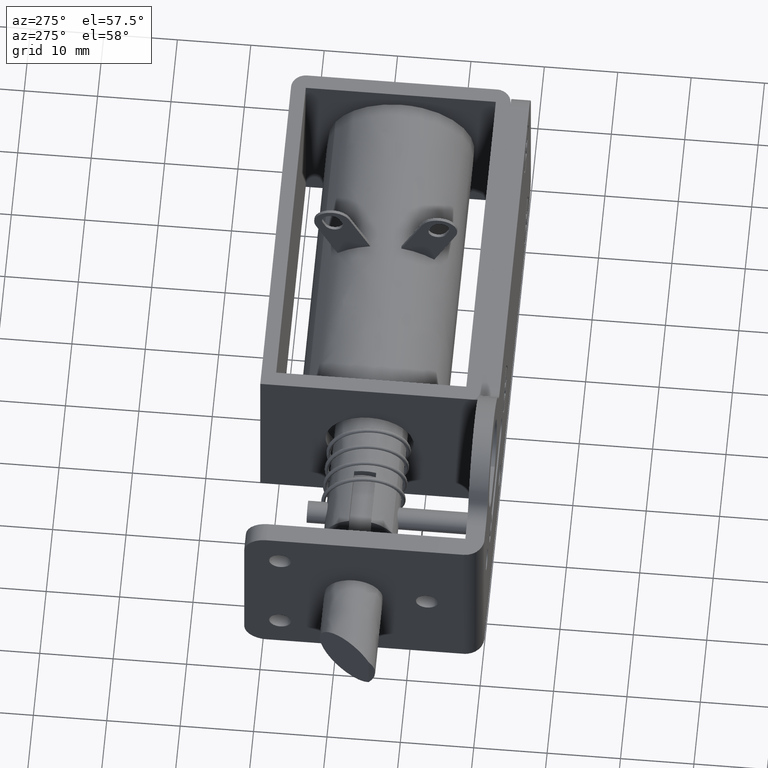
[diagram: clean part render]
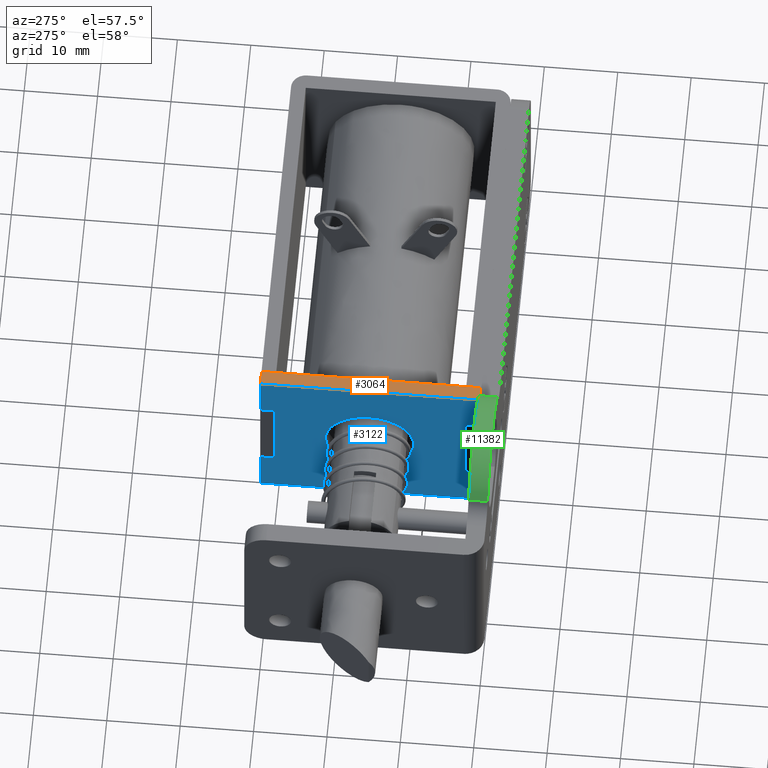
[diagram: same view with three faces highlighted in distinct colors, each labeled with its STEP entity id]
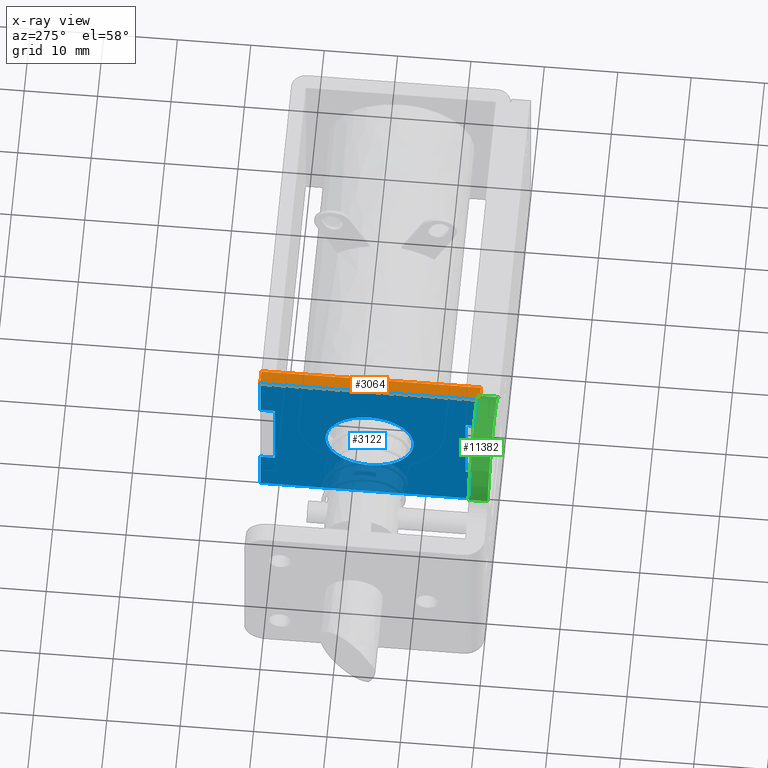
[diagram: x-ray of the same camera — body ghosted, the three highlighted faces saturated]
A machine part, auxiliary view with three faces highlighted in distinct colors.
The next image is the same camera in x-ray (body ghosted, the three faces saturated) — at least one of them is partly hidden behind the body in this view.
Their STEP definitions:

[orange] entity #3064 — the highlighted face is a freeform B-spline surface patch.
#3029=CARTESIAN_POINT('',(8.900100003876588,33.993504942047991,1.500000000000000));
#3030=CARTESIAN_POINT('',(11.099900049767990,33.993504942047991,1.500000000000000));
#3031=CARTESIAN_POINT('',(8.900100003876588,1.106494255971624,1.500000000000000));
#3032=CARTESIAN_POINT('',(11.099900049767990,1.106494255971624,1.500000000000000));
#3033=B_SPLINE_SURFACE_WITH_KNOTS('',1,1,((#3029,#3031),(#3030,#3032)),.UNSPECIFIED.,.F.,.F.,.U.,(2,2),(2,2),(0.0,2.199800045891402),(0.0,32.887010686076373),.UNSPECIFIED.);
#3034=CARTESIAN_POINT('',(11.000000000000201,32.500000000000000,1.499999999999946));
#3035=VERTEX_POINT('',#3034);
#3036=CARTESIAN_POINT('',(11.000000000000201,2.600000000000110,1.499999999999946));
#3037=VERTEX_POINT('',#3036);
#3038=CARTESIAN_POINT('',(11.000000000000201,32.500000000000000,1.499999999999946));
#3039=CARTESIAN_POINT('',(11.000000000000201,2.600000000000110,1.499999999999946));
#3040=QUASI_UNIFORM_CURVE('',1,(#3038,#3039),.UNSPECIFIED.,.F.,.U.);
#3041=EDGE_CURVE('',#3035,#3037,#3040,.T.);
#3042=ORIENTED_EDGE('',*,*,#3041,.F.);
#3043=CARTESIAN_POINT('',(9.000000000000199,32.500000000000000,1.499999999999946));
#3044=VERTEX_POINT('',#3043);
#3045=CARTESIAN_POINT('',(9.000000000000199,32.500000000000000,1.499999999999946));
#3046=CARTESIAN_POINT('',(11.000000000000201,32.500000000000000,1.499999999999946));
#3047=QUASI_UNIFORM_CURVE('',1,(#3045,#3046),.UNSPECIFIED.,.F.,.U.);
#3048=EDGE_CURVE('',#3044,#3035,#3047,.T.);
#3049=ORIENTED_EDGE('',*,*,#3048,.F.);
#3050=CARTESIAN_POINT('',(9.000000000000199,2.600000000000110,1.499999999999946));
#3051=VERTEX_POINT('',#3050);
#3052=CARTESIAN_POINT('',(9.000000000000199,2.600000000000110,1.499999999999946));
#3053=CARTESIAN_POINT('',(9.000000000000199,32.500000000000000,1.499999999999946));
#3054=QUASI_UNIFORM_CURVE('',1,(#3052,#3053),.UNSPECIFIED.,.F.,.U.);
#3055=EDGE_CURVE('',#3051,#3044,#3054,.T.);
#3056=ORIENTED_EDGE('',*,*,#3055,.F.);
#3057=CARTESIAN_POINT('',(11.000000000000201,2.600000000000110,1.499999999999946));
#3058=CARTESIAN_POINT('',(9.000000000000199,2.600000000000110,1.499999999999946));
#3059=QUASI_UNIFORM_CURVE('',1,(#3057,#3058),.UNSPECIFIED.,.F.,.U.);
#3060=EDGE_CURVE('',#3037,#3051,#3059,.T.);
#3061=ORIENTED_EDGE('',*,*,#3060,.F.);
#3062=EDGE_LOOP('',(#3042,#3049,#3056,#3061));
#3063=FACE_OUTER_BOUND('',#3062,.T.);
#3064=ADVANCED_FACE('',(#3063),#3033,.F.);

[blue] entity #3122 — the highlighted face is a freeform B-spline surface patch.
#2641=CARTESIAN_POINT('',(9.000000000001071,13.916805264720161,-6.263537549817999));
#2642=VERTEX_POINT('',#2641);
#2643=CARTESIAN_POINT('',(9.000000000000231,17.600000000000001,-4.999999999999999));
#2644=VERTEX_POINT('',#2643);
#2645=CARTESIAN_POINT('',(9.000000000001073,13.916805264720161,-6.263537549817998));
#2646=CARTESIAN_POINT('',(9.000000000000229,15.541671335952152,-4.999999999999998));
#2647=CARTESIAN_POINT('',(9.000000000000231,17.600000000000001,-4.999999999999999));
#2655=(BOUNDED_CURVE()B_SPLINE_CURVE(2,(#2645,#2646,#2647),.UNSPECIFIED.,.F.,.U.)B_SPLINE_CURVE_WITH_KNOTS((3,3),(0.893802295503374,1.0),.UNSPECIFIED.)CURVE()GEOMETRIC_REPRESENTATION_ITEM()RATIONAL_B_SPLINE_CURVE((0.856866845335225,0.875581649997533,1.0))REPRESENTATION_ITEM(''));
#2656=EDGE_CURVE('',#2642,#2644,#2655,.T.);
#2658=CARTESIAN_POINT('',(9.000000000000231,17.600000000000001,-17.0));
#2659=VERTEX_POINT('',#2658);
#2660=CARTESIAN_POINT('',(9.000000000000231,17.600000000000001,-4.999999999999999));
#2661=CARTESIAN_POINT('',(9.000000000000231,23.599999999999998,-4.999999999999998));
#2662=CARTESIAN_POINT('',(9.000000000000231,23.600000000000001,-11.0));
#2663=CARTESIAN_POINT('',(9.000000000000231,23.599999999999998,-17.000000000000004));
#2664=CARTESIAN_POINT('',(9.000000000000231,17.600000000000001,-17.0));
#2672=(BOUNDED_CURVE()B_SPLINE_CURVE(2,(#2660,#2661,#2662,#2663,#2664),.UNSPECIFIED.,.F.,.U.)B_SPLINE_CURVE_WITH_KNOTS((3,2,3),(0.0,0.250000000000000,0.500000000000000),.UNSPECIFIED.)CURVE()GEOMETRIC_REPRESENTATION_ITEM()RATIONAL_B_SPLINE_CURVE((1.0,0.707106781186548,1.0,0.707106781186548,1.0))REPRESENTATION_ITEM(''));
#2673=EDGE_CURVE('',#2644,#2659,#2672,.T.);
#2675=CARTESIAN_POINT('',(9.000000000000268,13.320497015215480,-15.205455290835969));
#2676=VERTEX_POINT('',#2675);
#2677=CARTESIAN_POINT('',(9.000000000000231,17.600000000000001,-17.0));
#2678=CARTESIAN_POINT('',(9.000000000000231,15.083990703182982,-17.000000000000007));
#2679=CARTESIAN_POINT('',(9.000000000000268,13.320497015215478,-15.205455290835967));
#2687=(BOUNDED_CURVE()B_SPLINE_CURVE(2,(#2677,#2678,#2679),.UNSPECIFIED.,.F.,.U.)B_SPLINE_CURVE_WITH_KNOTS((3,3),(0.500000000000000,0.626316778391333),.UNSPECIFIED.)CURVE()GEOMETRIC_REPRESENTATION_ITEM()RATIONAL_B_SPLINE_CURVE((1.0,0.852010688747267,0.853569641764915))REPRESENTATION_ITEM(''));
#2688=EDGE_CURVE('',#2659,#2676,#2687,.T.);
#2761=CARTESIAN_POINT('',(9.000000000000268,13.320497015215480,-15.205455290835969));
#2762=CARTESIAN_POINT('',(9.000000000000231,11.600000000000001,-13.454664325802357));
#2763=CARTESIAN_POINT('',(9.000000000000231,11.600000000000000,-11.0));
#2764=CARTESIAN_POINT('',(9.000000000000231,11.600000000000000,-8.065144771120183));
#2765=CARTESIAN_POINT('',(9.000000000001073,13.916805264720161,-6.263537549817998));
#2773=(BOUNDED_CURVE()B_SPLINE_CURVE(2,(#2761,#2762,#2763,#2764,#2765),.UNSPECIFIED.,.F.,.U.)B_SPLINE_CURVE_WITH_KNOTS((3,2,3),(0.626316778391333,0.750000000000000,0.893802295503374),.UNSPECIFIED.)CURVE()GEOMETRIC_REPRESENTATION_ITEM()RATIONAL_B_SPLINE_CURVE((0.853569641764914,0.855096092439280,1.0,0.831525131189015,0.856866845335225))REPRESENTATION_ITEM(''));
#2774=EDGE_CURVE('',#2676,#2642,#2773,.T.);
#2816=CARTESIAN_POINT('',(9.000000000000199,4.500000000000090,-5.100000000000001));
#2817=VERTEX_POINT('',#2816);
#2823=CARTESIAN_POINT('',(9.000000000000190,4.500000000000000,-16.899999999999999));
#2824=VERTEX_POINT('',#2823);
#2825=CARTESIAN_POINT('',(9.000000000000199,4.500000000000090,-5.100000000000001));
#2826=CARTESIAN_POINT('',(9.000000000000190,4.500000000000000,-16.899999999999999));
#2827=QUASI_UNIFORM_CURVE('',1,(#2825,#2826),.UNSPECIFIED.,.F.,.U.);
#2828=EDGE_CURVE('',#2817,#2824,#2827,.T.);
#2850=CARTESIAN_POINT('',(9.000000000000190,2.600000000000160,-16.899999999999999));
#2851=VERTEX_POINT('',#2850);
#2865=CARTESIAN_POINT('',(9.000000000000190,2.600000000000160,-16.899999999999999));
#2866=CARTESIAN_POINT('',(9.000000000000190,4.500000000000000,-16.899999999999999));
#2867=QUASI_UNIFORM_CURVE('',1,(#2865,#2866),.UNSPECIFIED.,.F.,.U.);
#2868=EDGE_CURVE('',#2851,#2824,#2867,.T.);
#2880=CARTESIAN_POINT('',(9.000000000000190,2.600000000000160,-5.100000000000001));
#2881=VERTEX_POINT('',#2880);
#2887=CARTESIAN_POINT('',(9.000000000000190,2.600000000000160,-5.100000000000001));
#2888=CARTESIAN_POINT('',(9.000000000000199,4.500000000000090,-5.100000000000001));
#2889=QUASI_UNIFORM_CURVE('',1,(#2887,#2888),.UNSPECIFIED.,.F.,.U.);
#2890=EDGE_CURVE('',#2881,#2817,#2889,.T.);
#2908=CARTESIAN_POINT('',(9.000000000000199,30.500000000000000,-5.100000000000001));
#2909=VERTEX_POINT('',#2908);
#2922=CARTESIAN_POINT('',(9.000000000000199,30.500000000000000,-16.899999999999999));
#2923=VERTEX_POINT('',#2922);
#2929=CARTESIAN_POINT('',(9.000000000000199,30.500000000000000,-5.100000000000001));
#2930=CARTESIAN_POINT('',(9.000000000000199,30.500000000000000,-16.899999999999999));
#2931=QUASI_UNIFORM_CURVE('',1,(#2929,#2930),.UNSPECIFIED.,.F.,.U.);
#2932=EDGE_CURVE('',#2909,#2923,#2931,.T.);
#2950=CARTESIAN_POINT('',(9.000000000000199,32.500000000000000,-16.899999999999999));
#2951=VERTEX_POINT('',#2950);
#2957=CARTESIAN_POINT('',(9.000000000000199,32.500000000000000,-16.899999999999999));
#2958=CARTESIAN_POINT('',(9.000000000000199,30.500000000000000,-16.899999999999999));
#2959=QUASI_UNIFORM_CURVE('',1,(#2957,#2958),.UNSPECIFIED.,.F.,.U.);
#2960=EDGE_CURVE('',#2951,#2923,#2959,.T.);
#2971=CARTESIAN_POINT('',(9.000000000000199,32.500000000000000,-5.100000000000001));
#2972=VERTEX_POINT('',#2971);
#2973=CARTESIAN_POINT('',(9.000000000000199,32.500000000000000,-5.100000000000001));
#2974=CARTESIAN_POINT('',(9.000000000000199,30.500000000000000,-5.100000000000001));
#2975=QUASI_UNIFORM_CURVE('',1,(#2973,#2974),.UNSPECIFIED.,.F.,.U.);
#2976=EDGE_CURVE('',#2972,#2909,#2975,.T.);
#3007=CARTESIAN_POINT('',(9.000000000000199,2.600000000000110,-23.500000000000000));
#3008=VERTEX_POINT('',#3007);
#3014=CARTESIAN_POINT('',(9.000000000000199,32.500000000000000,-23.500000000000000));
#3015=VERTEX_POINT('',#3014);
#3016=CARTESIAN_POINT('',(9.000000000000199,2.600000000000110,-23.500000000000000));
#3017=CARTESIAN_POINT('',(9.000000000000199,32.500000000000000,-23.500000000000000));
#3018=QUASI_UNIFORM_CURVE('',1,(#3016,#3017),.UNSPECIFIED.,.F.,.U.);
#3019=EDGE_CURVE('',#3008,#3015,#3018,.T.);
#3043=CARTESIAN_POINT('',(9.000000000000199,32.500000000000000,1.499999999999946));
#3044=VERTEX_POINT('',#3043);
#3050=CARTESIAN_POINT('',(9.000000000000199,2.600000000000110,1.499999999999946));
#3051=VERTEX_POINT('',#3050);
#3052=CARTESIAN_POINT('',(9.000000000000199,2.600000000000110,1.499999999999946));
#3053=CARTESIAN_POINT('',(9.000000000000199,32.500000000000000,1.499999999999946));
#3054=QUASI_UNIFORM_CURVE('',1,(#3052,#3053),.UNSPECIFIED.,.F.,.U.);
#3055=EDGE_CURVE('',#3051,#3044,#3054,.T.);
#3077=CARTESIAN_POINT('',(9.000000000000199,32.500000000000000,-16.899999999999999));
#3078=CARTESIAN_POINT('',(9.000000000000199,32.500000000000000,-23.500000000000000));
#3079=QUASI_UNIFORM_CURVE('',1,(#3077,#3078),.UNSPECIFIED.,.F.,.U.);
#3080=EDGE_CURVE('',#2951,#3015,#3079,.T.);
#3085=CARTESIAN_POINT('',(9.000000000000199,1.106494777272312,-24.748749951545150));
#3086=CARTESIAN_POINT('',(9.000000000000199,1.106494777272312,2.748750622097349));
#3087=CARTESIAN_POINT('',(9.000000000000199,33.993505757381463,-24.748749951545150));
#3088=CARTESIAN_POINT('',(9.000000000000199,33.993505757381463,2.748750622097349));
#3089=B_SPLINE_SURFACE_WITH_KNOTS('',1,1,((#3085,#3087),(#3086,#3088)),.UNSPECIFIED.,.F.,.F.,.U.,(2,2),(2,2),(0.0,27.497500573642490),(0.0,32.887010980109153),.UNSPECIFIED.);
#3090=ORIENTED_EDGE('',*,*,#2890,.F.);
#3091=CARTESIAN_POINT('',(9.000000000000199,2.600000000000110,1.499999999999946));
#3092=CARTESIAN_POINT('',(9.000000000000190,2.600000000000160,-5.100000000000001));
#3093=QUASI_UNIFORM_CURVE('',1,(#3091,#3092),.UNSPECIFIED.,.F.,.U.);
#3094=EDGE_CURVE('',#3051,#2881,#3093,.T.);
#3095=ORIENTED_EDGE('',*,*,#3094,.F.);
#3096=ORIENTED_EDGE('',*,*,#3055,.T.);
#3097=CARTESIAN_POINT('',(9.000000000000199,32.500000000000000,1.499999999999946));
#3098=CARTESIAN_POINT('',(9.000000000000199,32.500000000000000,-5.100000000000001));
#3099=QUASI_UNIFORM_CURVE('',1,(#3097,#3098),.UNSPECIFIED.,.F.,.U.);
#3100=EDGE_CURVE('',#3044,#2972,#3099,.T.);
#3101=ORIENTED_EDGE('',*,*,#3100,.T.);
#3102=ORIENTED_EDGE('',*,*,#2976,.T.);
#3103=ORIENTED_EDGE('',*,*,#2932,.T.);
#3104=ORIENTED_EDGE('',*,*,#2960,.F.);
#3105=ORIENTED_EDGE('',*,*,#3080,.T.);
#3106=ORIENTED_EDGE('',*,*,#3019,.F.);
#3107=CARTESIAN_POINT('',(9.000000000000190,2.600000000000160,-16.899999999999999));
#3108=CARTESIAN_POINT('',(9.000000000000199,2.600000000000110,-23.500000000000000));
#3109=QUASI_UNIFORM_CURVE('',1,(#3107,#3108),.UNSPECIFIED.,.F.,.U.);
#3110=EDGE_CURVE('',#2851,#3008,#3109,.T.);
#3111=ORIENTED_EDGE('',*,*,#3110,.F.);
#3112=ORIENTED_EDGE('',*,*,#2868,.T.);
#3113=ORIENTED_EDGE('',*,*,#2828,.F.);
#3114=EDGE_LOOP('',(#3090,#3095,#3096,#3101,#3102,#3103,#3104,#3105,#3106,#3111,#3112,#3113));
#3115=FACE_OUTER_BOUND('',#3114,.T.);
#3116=ORIENTED_EDGE('',*,*,#2673,.F.);
#3117=ORIENTED_EDGE('',*,*,#2656,.F.);
#3118=ORIENTED_EDGE('',*,*,#2774,.F.);
#3119=ORIENTED_EDGE('',*,*,#2688,.F.);
#3120=EDGE_LOOP('',(#3116,#3117,#3118,#3119));
#3121=FACE_BOUND('',#3120,.T.);
#3122=ADVANCED_FACE('',(#3115,#3121),#3089,.T.);

[green] entity #11382 — the highlighted face is a freeform B-spline surface patch.
#11284=CARTESIAN_POINT('',(8.343223347288470,2.600000000000045,3.374999878112665));
#11285=VERTEX_POINT('',#11284);
#11299=CARTESIAN_POINT('',(8.343223347288470,0.0,3.374999878112665));
#11300=VERTEX_POINT('',#11299);
#11301=CARTESIAN_POINT('',(8.343223347288470,2.600000000000045,3.374999878112665));
#11302=CARTESIAN_POINT('',(8.343223347288470,0.0,3.374999878112665));
#11303=QUASI_UNIFORM_CURVE('',1,(#11301,#11302),.UNSPECIFIED.,.F.,.U.);
#11304=EDGE_CURVE('',#11285,#11300,#11303,.T.);
#11322=CARTESIAN_POINT('',(-8.431386358257857,2.665000000000047,3.148289071509037));
#11323=CARTESIAN_POINT('',(-8.431386358257857,-0.066625000000001,3.148289071509037));
#11324=CARTESIAN_POINT('',(-6.185733587814561,2.665000000000046,9.162338513615744));
#11325=CARTESIAN_POINT('',(-6.185733587814561,-0.066625000000001,9.162338513615744));
#11326=CARTESIAN_POINT('',(0.231774902294864,2.665000000000047,8.997015082496311));
#11327=CARTESIAN_POINT('',(0.231774902294864,-0.066625000000001,8.997015082496311));
#11328=CARTESIAN_POINT('',(6.649283392404287,2.665000000000046,8.831691651376879));
#11329=CARTESIAN_POINT('',(6.649283392404287,-0.066625000000001,8.831691651376879));
#11330=CARTESIAN_POINT('',(8.582303412637108,2.665000000000047,2.709994120554015));
#11331=CARTESIAN_POINT('',(8.582303412637108,-0.066625000000001,2.709994120554015));
#11339=(BOUNDED_SURFACE()B_SPLINE_SURFACE(1,2,((#11322,#11324,#11326,#11328,#11330),(#11323,#11325,#11327,#11329,#11331)),.UNSPECIFIED.,.F.,.F.,.U.)B_SPLINE_SURFACE_WITH_KNOTS((2,2),(3,2,3),(0.0,2.731625000000048),(0.0,11.523690853234690,23.047381706469380),.UNSPECIFIED.)GEOMETRIC_REPRESENTATION_ITEM()RATIONAL_B_SPLINE_SURFACE(((1.0,0.814115518356319,1.0,0.814115518356319,1.0),(1.0,0.814115518356319,1.0,0.814115518356319,1.0)))REPRESENTATION_ITEM('')SURFACE());
#11340=CARTESIAN_POINT('',(-8.343223524003038,2.600000000000045,3.374999441262525));
#11341=VERTEX_POINT('',#11340);
#11342=CARTESIAN_POINT('',(8.343223347288472,2.600000000000045,3.374999878112667));
#11343=CARTESIAN_POINT('',(6.067798793532807,2.600000000000045,9.000000158854597));
#11344=CARTESIAN_POINT('',(-0.000000235619442,2.600000000000045,8.999999999999996));
#11345=CARTESIAN_POINT('',(-6.067799264771691,2.600000000000045,8.999999841145396));
#11346=CARTESIAN_POINT('',(-8.343223524003037,2.600000000000045,3.374999441262523));
#11354=(BOUNDED_CURVE()B_SPLINE_CURVE(2,(#11342,#11343,#11344,#11345,#11346),.UNSPECIFIED.,.F.,.U.)B_SPLINE_CURVE_WITH_KNOTS((3,2,3),(0.0,0.500000000000000,1.0),.UNSPECIFIED.)CURVE()GEOMETRIC_REPRESENTATION_ITEM()RATIONAL_B_SPLINE_CURVE((1.0,0.829156186187955,1.0,0.829156186187955,1.0))REPRESENTATION_ITEM(''));
#11355=EDGE_CURVE('',#11285,#11341,#11354,.T.);
#11356=ORIENTED_EDGE('',*,*,#11355,.T.);
#11357=CARTESIAN_POINT('',(-8.343223524003038,0.0,3.374999441262525));
#11358=VERTEX_POINT('',#11357);
#11359=CARTESIAN_POINT('',(-8.343223524003038,2.600000000000045,3.374999441262525));
#11360=CARTESIAN_POINT('',(-8.343223524003038,0.0,3.374999441262525));
#11361=QUASI_UNIFORM_CURVE('',1,(#11359,#11360),.UNSPECIFIED.,.F.,.U.);
#11362=EDGE_CURVE('',#11341,#11358,#11361,.T.);
#11363=ORIENTED_EDGE('',*,*,#11362,.T.);
#11364=CARTESIAN_POINT('',(8.343223347288472,0.0,3.374999878112667));
#11365=CARTESIAN_POINT('',(6.067798793532807,0.0,9.000000158854597));
#11366=CARTESIAN_POINT('',(-0.000000235619442,0.0,8.999999999999996));
#11367=CARTESIAN_POINT('',(-6.067799264771691,0.0,8.999999841145396));
#11368=CARTESIAN_POINT('',(-8.343223524003037,0.0,3.374999441262523));
#11376=(BOUNDED_CURVE()B_SPLINE_CURVE(2,(#11364,#11365,#11366,#11367,#11368),.UNSPECIFIED.,.F.,.U.)B_SPLINE_CURVE_WITH_KNOTS((3,2,3),(0.0,0.500000000000000,1.0),.UNSPECIFIED.)CURVE()GEOMETRIC_REPRESENTATION_ITEM()RATIONAL_B_SPLINE_CURVE((1.0,0.829156186187955,1.0,0.829156186187955,1.0))REPRESENTATION_ITEM(''));
#11377=EDGE_CURVE('',#11300,#11358,#11376,.T.);
#11378=ORIENTED_EDGE('',*,*,#11377,.F.);
#11379=ORIENTED_EDGE('',*,*,#11304,.F.);
#11380=EDGE_LOOP('',(#11356,#11363,#11378,#11379));
#11381=FACE_OUTER_BOUND('',#11380,.T.);
#11382=ADVANCED_FACE('',(#11381),#11339,.T.);